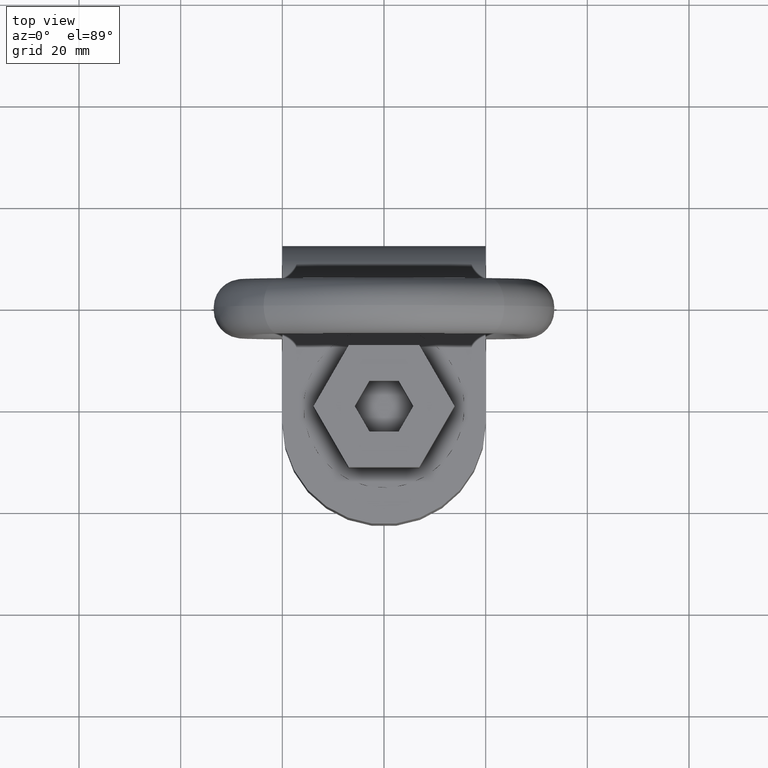
[diagram: clean part render]
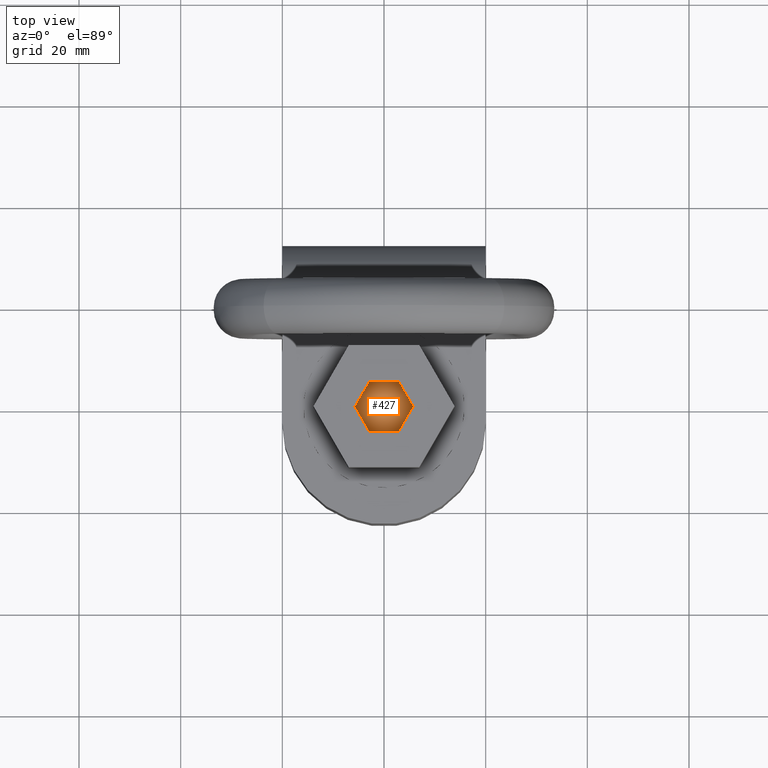
[diagram: same view with one face highlighted and labeled with its STEP entity id]
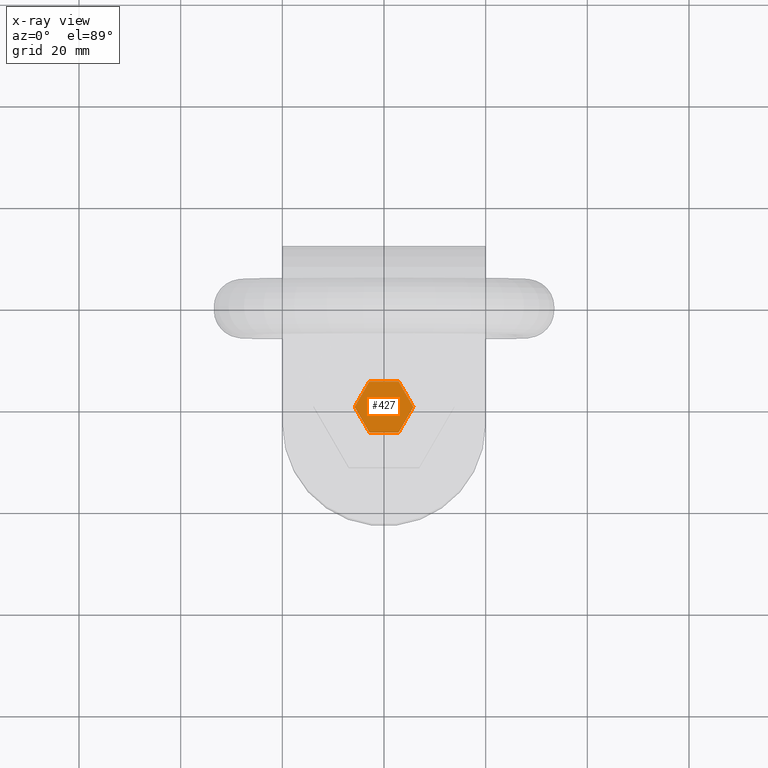
[diagram: x-ray of the same camera — body ghosted, the highlighted face saturated]
A machine part, top view. The second image highlights one B-rep face of the part: STEP entity #427.
The next image is the same camera in x-ray: the body ghosted, the highlighted face saturated — about 0% of this face is hidden behind the body in this view.
In plain terms, the highlighted planar face has unit normal (0, 0, 1).
Its self-contained STEP definition (entity closure, byte-faithful):
#259=FACE_OUTER_BOUND('',#659,.T.);
#365=PLANE('',#2473);
#427=ADVANCED_FACE('',(#259),#365,.T.);
#659=EDGE_LOOP('',(#1284,#1285,#1286,#1287,#1288,#1289));
#824=LINE('',#3873,#950);
#827=LINE('',#3879,#953);
#829=LINE('',#3883,#955);
#831=LINE('',#3887,#957);
#833=LINE('',#3891,#959);
#834=LINE('',#3893,#960);
#950=VECTOR('',#2689,1.);
#953=VECTOR('',#2694,1.);
#955=VECTOR('',#2698,1.);
#957=VECTOR('',#2702,1.);
#959=VECTOR('',#2706,1.);
#960=VECTOR('',#2709,1.);
#1284=ORIENTED_EDGE('',*,*,#2047,.F.);
#1285=ORIENTED_EDGE('',*,*,#2050,.F.);
#1286=ORIENTED_EDGE('',*,*,#2052,.F.);
#1287=ORIENTED_EDGE('',*,*,#2054,.F.);
#1288=ORIENTED_EDGE('',*,*,#2056,.F.);
#1289=ORIENTED_EDGE('',*,*,#2057,.F.);
#1826=VERTEX_POINT('',#3872);
#1827=VERTEX_POINT('',#3874);
#1828=VERTEX_POINT('',#3878);
#1829=VERTEX_POINT('',#3882);
#1830=VERTEX_POINT('',#3886);
#1831=VERTEX_POINT('',#3890);
#2047=EDGE_CURVE('',#1826,#1827,#824,.T.);
#2050=EDGE_CURVE('',#1828,#1826,#827,.T.);
#2052=EDGE_CURVE('',#1829,#1828,#829,.T.);
#2054=EDGE_CURVE('',#1830,#1829,#831,.T.);
#2056=EDGE_CURVE('',#1831,#1830,#833,.T.);
#2057=EDGE_CURVE('',#1827,#1831,#834,.T.);
#2473=AXIS2_PLACEMENT_3D('',#3895,#2712,#2713);
#2689=DIRECTION('',(-0.5,0.866025403784438,0.));
#2694=DIRECTION('',(-1.,0.,0.));
#2698=DIRECTION('',(-0.5,-0.866025403784438,0.));
#2702=DIRECTION('',(0.5,-0.866025403784438,0.));
#2706=DIRECTION('',(1.,0.,0.));
#2709=DIRECTION('',(0.5,0.866025403784438,0.));
#2712=DIRECTION('',(0.,0.,1.));
#2713=DIRECTION('',(1.,0.,0.));
#3872=CARTESIAN_POINT('',(-2.88675134594813,-5.,29.));
#3873=CARTESIAN_POINT('',(-5.77350269189626,0.,29.));
#3874=CARTESIAN_POINT('',(-5.77350269189626,0.,29.));
#3878=CARTESIAN_POINT('',(2.88675134594813,-5.,29.));
#3879=CARTESIAN_POINT('',(-2.88675134594813,-5.,29.));
#3882=CARTESIAN_POINT('',(5.77350269189626,-8.67361737988404E-16,29.));
#3883=CARTESIAN_POINT('',(2.88675134594813,-5.,29.));
#3886=CARTESIAN_POINT('',(2.88675134594813,5.,29.));
#3887=CARTESIAN_POINT('',(5.77350269189626,0.,29.));
#3890=CARTESIAN_POINT('',(-2.88675134594813,5.,29.));
#3891=CARTESIAN_POINT('',(2.88675134594813,5.,29.));
#3893=CARTESIAN_POINT('',(-2.88675134594813,5.,29.));
#3895=CARTESIAN_POINT('',(0.,0.,29.));